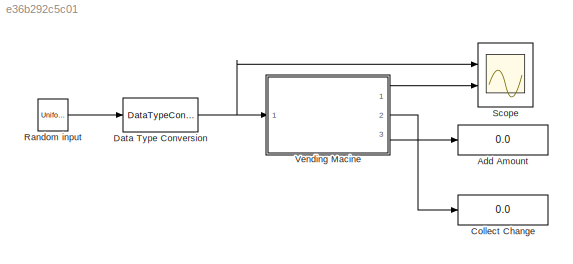
MODEL slx_e36b292c5c01
KIND model
CONFIG AbsTol = auto
CONFIG EnableMultiTasking = off
CONFIG FixedStep = 0.1
CONFIG MaxStep = auto
CONFIG MinStep = auto
CONFIG RelTol = 1e-3
CONFIG SampleTimeConstraint = Unconstrained
CONFIG Solver = FixedStepDiscrete
CONFIG SolverName = FixedStepDiscrete
CONFIG StartTime = 0.0
CONFIG StopTime = 200
BLOCK [Display] Add Amount
  Decimation = 1
  Ports = [1]
BLOCK [Display] Collect Change
  Decimation = 1
  Ports = [1]
BLOCK [DataTypeConversion] Data Type Conversion
  OutDataTypeStr = int8
  RndMeth = Nearest
BLOCK [UniformRandomNumber] Random input
  Maximum = 100
  Minimum = 0
  SampleTime = 10
  Seed = 337
BLOCK [Scope] Scope
  Floating = off
  NumInputPorts = 2
  Ports = [2]
  ScopeSpecificationString = Simulink.scopes.TimeScopeBlockCfg('CurrentConfiguration', extmgr.ConfigurationSet(extmgr.Configuration('Core','General UI',true),extmgr.Configuration('Core','Source UI',true),extmgr.Configuration('Sources','WiredSimulink',true),extmgr.Configuration('Visuals','Time Domain',true,'SerializedDisplays',{struct('MinYLimReal','-11.09196','MaxYLimReal','112.08929','YLabelReal','','MinYLimMag','0.00000','M...<+2016ch>
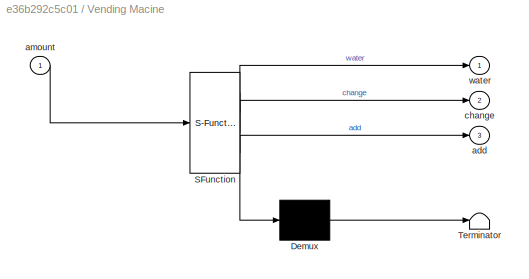
BLOCK [SubSystem] Vending Macine
  ErrorFcn = Stateflow.Translate.translate
  PermitHierarchicalResolution = ExplicitOnly
  Ports = [1, 3]
  RequestExecContextInheritance = off
  SFBlockType = Chart
  TreatAsAtomicUnit = on
BLOCK [Demux] Vending Macine/ Demux 
  Outputs = 1
  Ports = [1, 1]
BLOCK [S-Function] Vending Macine/ SFunction 
  EnableBusSupport = on
  FunctionName = sf_sfun
  PortCounts = [1 4]
  Ports = [1, 4]
  SFcnIsStateOwnerBlock = off
  SFunctionDeploymentMode = off
  Tag = Stateflow S-Function 3
BLOCK [Terminator] Vending Macine/ Terminator 
BLOCK [Outport] Vending Macine/add
  Port = 3
BLOCK [Inport] Vending Macine/amount
BLOCK [Outport] Vending Macine/change
  Port = 2
BLOCK [Outport] Vending Macine/water
NET Data Type Conversion:1 -> Scope:1, Vending Macine:1
LINE Random input:1 -> Data Type Conversion:1
LINE Vending Macine:1 -> Scope:2
LINE Vending Macine:2 -> Collect Change:1
LINE Vending Macine:3 -> Add Amount:1
note: NET lines group one-source signal fan-out (src -> all destinations, sorted); 1:1 wires keep LINE
CHART Vending Macine states=4 transitions=7
  STATE_LABEL 'Start'
  STATE_LABEL 'Dispense_Change\n\n'
  STATE_LABEL 'Add_Amount'
  STATE_LABEL 'Dispense_Water'
CHART  states=0 transitions=0
